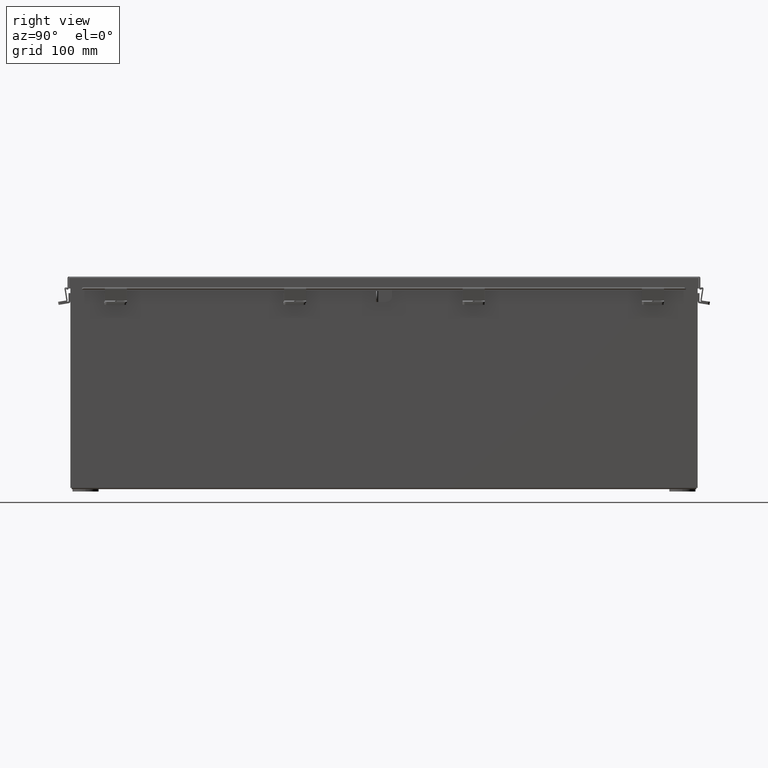
[diagram: clean part render]
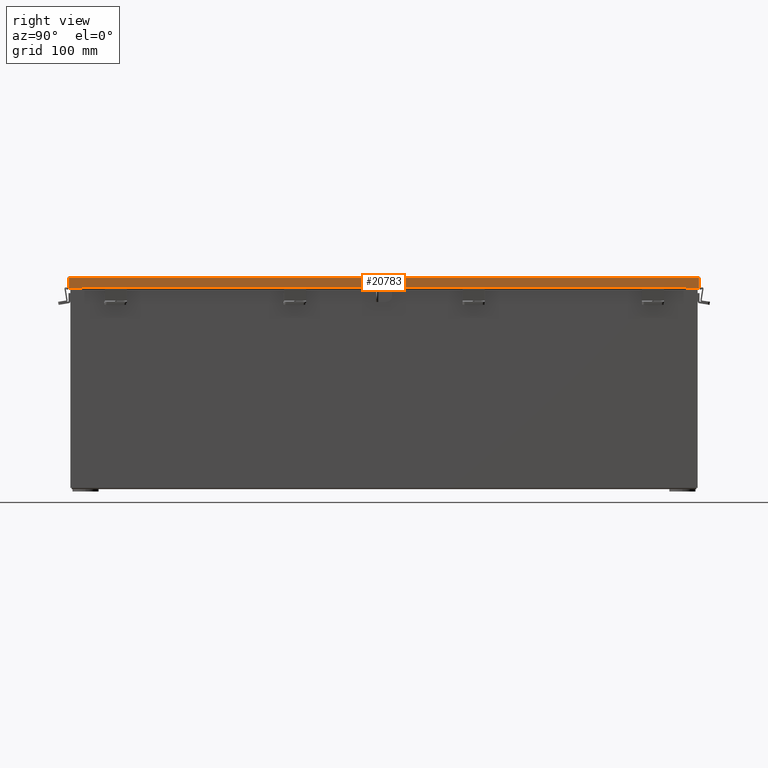
[diagram: same view with one face highlighted and labeled with its STEP entity id]
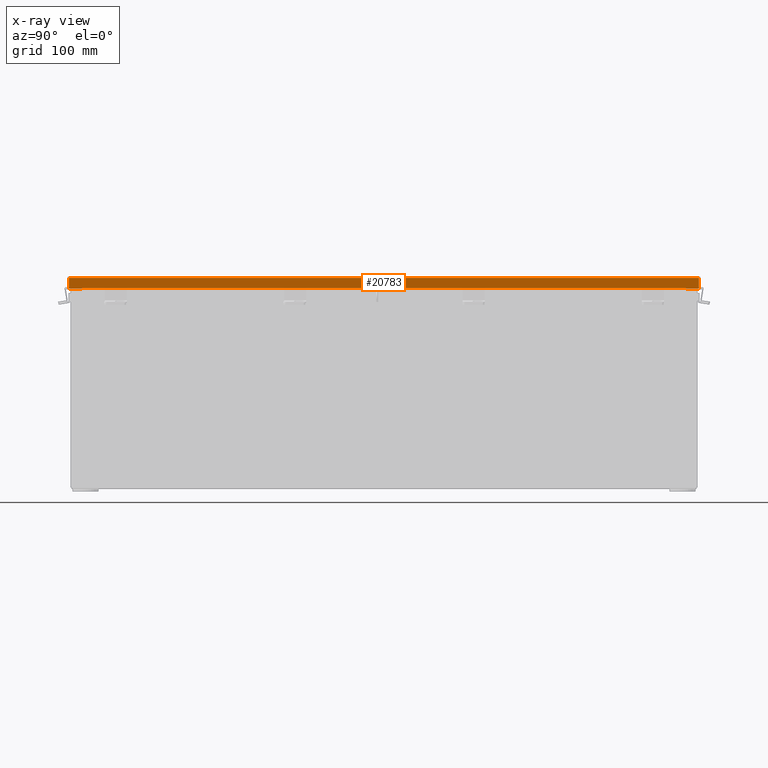
[diagram: x-ray of the same camera — body ghosted, the highlighted face saturated]
A machine part, right view. The second image highlights one B-rep face of the part: STEP entity #20783.
The next image is the same camera in x-ray: the body ghosted, the highlighted face saturated — about 0% of this face is hidden behind the body in this view.
In plain terms, the highlighted planar face has unit normal (-1, 0, -0).
Its self-contained STEP definition (entity closure, byte-faithful):
#716 = VERTEX_POINT ( 'NONE', #29734 ) ;
#1474 = CARTESIAN_POINT ( 'NONE',  ( -6.156249999999993800, 18.07447893218813200, 0.6123000000000005100 ) ) ;
#1545 = VECTOR ( 'NONE', #25062, 39.37007874015748100 ) ;
#1944 = LINE ( 'NONE', #25571, #25740 ) ;
#2258 = CARTESIAN_POINT ( 'NONE',  ( -6.156249999999993800, 17.32447893218812500, 0.6123000000000005100 ) ) ;
#2845 = LINE ( 'NONE', #13070, #26634 ) ;
#4215 = PLANE ( 'NONE',  #22673 ) ;
#4406 = DIRECTION ( 'NONE',  ( 5.315277860228140500E-030, 1.000000000000000000, 1.597443333072548900E-029 ) ) ;
#4959 = CARTESIAN_POINT ( 'NONE',  ( -6.156249999999991100, 18.07447893218813200, 0.0000000000000000000 ) ) ;
#5094 = EDGE_CURVE ( 'NONE', #7206, #28166, #2845, .T. ) ;
#5507 = VECTOR ( 'NONE', #14298, 39.37007874015748100 ) ;
#6674 = DIRECTION ( 'NONE',  ( 5.211708260985339900E-030, 1.000000000000000000, -3.009264571332532000E-017 ) ) ;
#6718 = CARTESIAN_POINT ( 'NONE',  ( -6.156249999999993800, 0.0000000000000000000, 0.6123000000000005100 ) ) ;
#7161 = DIRECTION ( 'NONE',  ( -3.569293475308526100E-015, 1.597443333072548900E-029, 1.000000000000000000 ) ) ;
#7206 = VERTEX_POINT ( 'NONE', #8448 ) ;
#8448 = CARTESIAN_POINT ( 'NONE',  ( -6.156249999999993800, -18.07447893218813900, 0.6123000000000005100 ) ) ;
#8450 = EDGE_CURVE ( 'NONE', #716, #18302, #1944, .T. ) ;
#8848 = DIRECTION ( 'NONE',  ( 1.000000000000000000, 5.319100850303771400E-030, 3.569293475308526100E-015 ) ) ;
#11021 = CARTESIAN_POINT ( 'NONE',  ( -6.156249999999993800, -17.32447893218813600, 0.5967115427318782100 ) ) ;
#11262 = CARTESIAN_POINT ( 'NONE',  ( -6.156249999999991100, -18.07447893218813900, -2.185478394931410600E-014 ) ) ;
#11377 = CARTESIAN_POINT ( 'NONE',  ( -6.156249999999993800, -17.32447893218813900, 0.6123000000000005100 ) ) ;
#11760 = DIRECTION ( 'NONE',  ( -5.315277860228140500E-030, -1.000000000000000000, -1.597443333072548900E-029 ) ) ;
#12321 = CARTESIAN_POINT ( 'NONE',  ( -6.156249999999993800, -17.32447893218813600, 0.5967115427318782100 ) ) ;
#12648 = EDGE_CURVE ( 'NONE', #15335, #26009, #28054, .T. ) ;
#13070 = CARTESIAN_POINT ( 'NONE',  ( -6.156249999999993800, 0.0000000000000000000, 0.6123000000000005100 ) ) ;
#13090 = ORIENTED_EDGE ( 'NONE', *, *, #8450, .F. ) ;
#14298 = DIRECTION ( 'NONE',  ( 2.102977566036114000E-013, -1.597443333072548900E-029, -1.000000000000000000 ) ) ;
#14627 = ORIENTED_EDGE ( 'NONE', *, *, #21474, .T. ) ;
#14689 = CARTESIAN_POINT ( 'NONE',  ( -6.156249999999991100, 18.07447893218813200, 0.01300000000000010700 ) ) ;
#15335 = VERTEX_POINT ( 'NONE', #14689 ) ;
#15784 = VECTOR ( 'NONE', #7161, 39.37007874015748100 ) ;
#15849 = CARTESIAN_POINT ( 'NONE',  ( -6.156250000000000900, 18.15624999999999600, 0.01300000000000010700 ) ) ;
#16068 = EDGE_LOOP ( 'NONE', ( #18622, #21607, #22518, #27551, #14627, #22660, #16796, #13090 ) ) ;
#16391 = VERTEX_POINT ( 'NONE', #28225 ) ;
#16796 = ORIENTED_EDGE ( 'NONE', *, *, #24855, .F. ) ;
#17423 = FACE_OUTER_BOUND ( 'NONE', #16068, .T. ) ;
#17947 = DIRECTION ( 'NONE',  ( -7.009925220119888100E-014, -1.401985044023977600E-013, 1.000000000000000000 ) ) ;
#17964 = LINE ( 'NONE', #11021, #29501 ) ;
#18067 = VERTEX_POINT ( 'NONE', #2258 ) ;
#18302 = VERTEX_POINT ( 'NONE', #12321 ) ;
#18622 = ORIENTED_EDGE ( 'NONE', *, *, #21050, .F. ) ;
#19145 = EDGE_CURVE ( 'NONE', #18067, #26009, #22830, .T. ) ;
#20783 = ADVANCED_FACE ( 'NONE', ( #17423 ), #4215, .F. ) ;
#21050 = EDGE_CURVE ( 'NONE', #18067, #716, #23905, .T. ) ;
#21474 = EDGE_CURVE ( 'NONE', #16391, #7206, #25349, .T. ) ;
#21479 = VECTOR ( 'NONE', #6674, 39.37007874015748100 ) ;
#21607 = ORIENTED_EDGE ( 'NONE', *, *, #19145, .T. ) ;
#22204 = LINE ( 'NONE', #15849, #21479 ) ;
#22518 = ORIENTED_EDGE ( 'NONE', *, *, #12648, .F. ) ;
#22651 = CARTESIAN_POINT ( 'NONE',  ( -6.156249999999991100, 0.0000000000000000000, -2.185478394931410600E-014 ) ) ;
#22660 = ORIENTED_EDGE ( 'NONE', *, *, #5094, .T. ) ;
#22673 = AXIS2_PLACEMENT_3D ( 'NONE', #22651, #8848, #24995 ) ;
#22830 = LINE ( 'NONE', #6718, #28235 ) ;
#23905 = LINE ( 'NONE', #25784, #5507 ) ;
#24855 = EDGE_CURVE ( 'NONE', #18302, #28166, #17964, .T. ) ;
#24995 = DIRECTION ( 'NONE',  ( 3.569293475308526100E-015, -1.597443333072548900E-029, -1.000000000000000000 ) ) ;
#25062 = DIRECTION ( 'NONE',  ( -3.569293475308526100E-015, 1.597443333072548900E-029, 1.000000000000000000 ) ) ;
#25349 = LINE ( 'NONE', #11262, #1545 ) ;
#25571 = CARTESIAN_POINT ( 'NONE',  ( -6.156249999999993800, 17.32447893218812500, 0.5967115427318761000 ) ) ;
#25740 = VECTOR ( 'NONE', #11760, 39.37007874015748100 ) ;
#25784 = CARTESIAN_POINT ( 'NONE',  ( -6.156249999999997300, 17.32447893218812500, 0.6122999999999982900 ) ) ;
#26009 = VERTEX_POINT ( 'NONE', #1474 ) ;
#26163 = EDGE_CURVE ( 'NONE', #16391, #15335, #22204, .T. ) ;
#26634 = VECTOR ( 'NONE', #26843, 39.37007874015748100 ) ;
#26843 = DIRECTION ( 'NONE',  ( 5.315277860228140500E-030, 1.000000000000000000, 1.597443333072548900E-029 ) ) ;
#27551 = ORIENTED_EDGE ( 'NONE', *, *, #26163, .F. ) ;
#28054 = LINE ( 'NONE', #4959, #15784 ) ;
#28166 = VERTEX_POINT ( 'NONE', #11377 ) ;
#28225 = CARTESIAN_POINT ( 'NONE',  ( -6.156249999999991100, -18.07447893218813900, 0.01300000000000229300 ) ) ;
#28235 = VECTOR ( 'NONE', #4406, 39.37007874015748100 ) ;
#29501 = VECTOR ( 'NONE', #17947, 39.37007874015748100 ) ;
#29734 = CARTESIAN_POINT ( 'NONE',  ( -6.156249999999993800, 17.32447893218812500, 0.5967115427318761000 ) ) ;